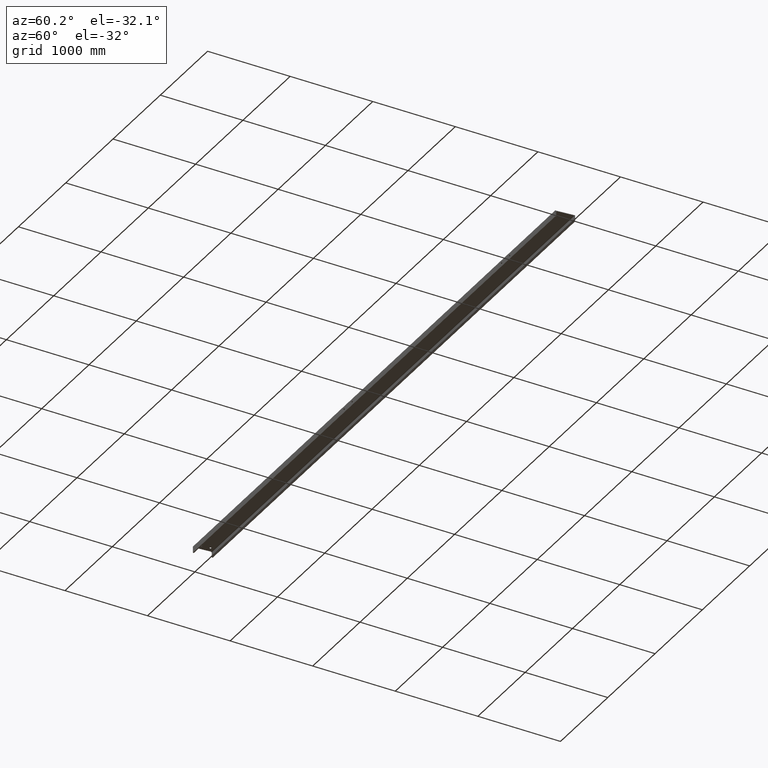
[diagram: clean part render]
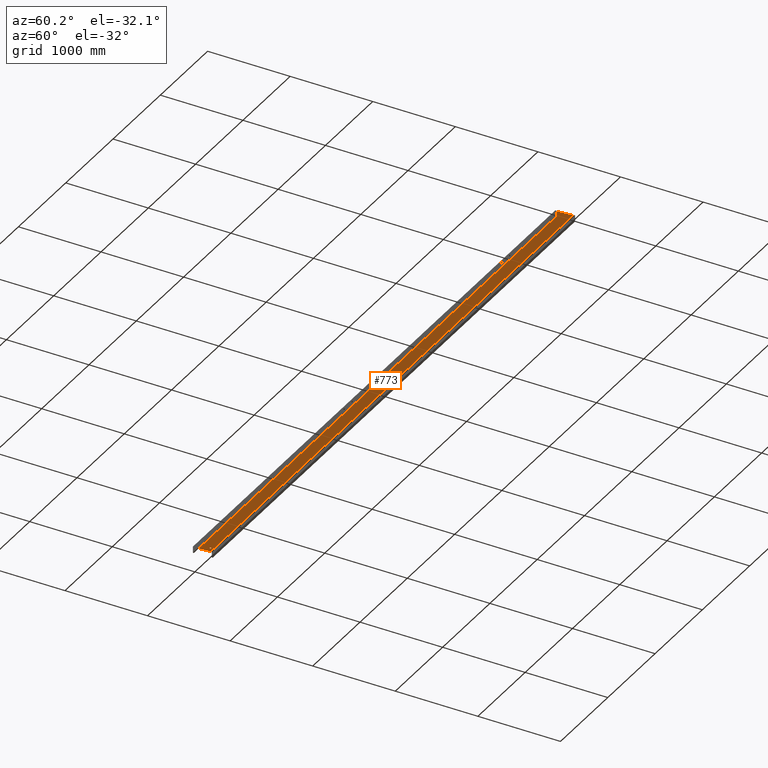
[diagram: same view with one face highlighted and labeled with its STEP entity id]
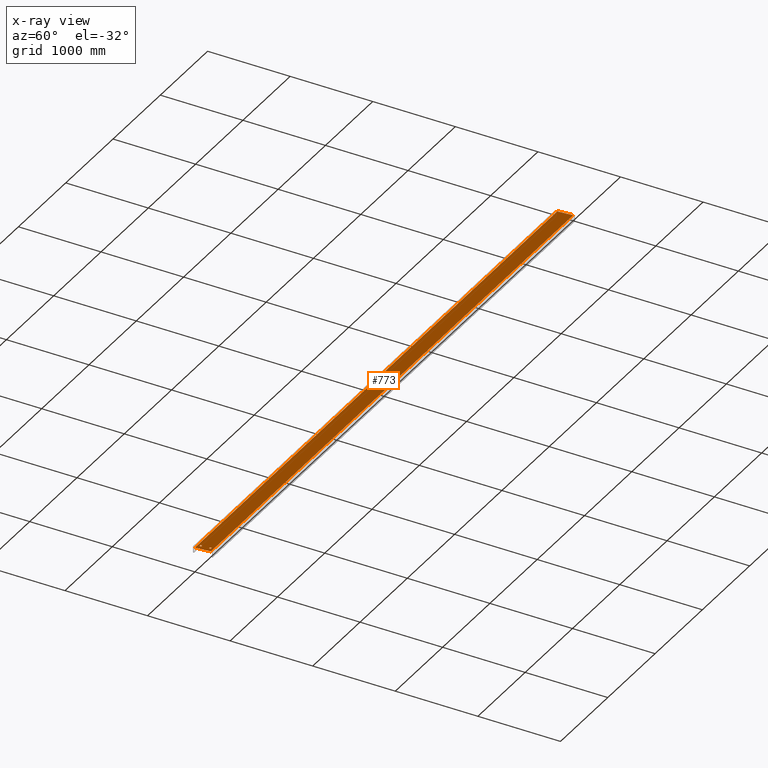
[diagram: x-ray of the same camera — body ghosted, the highlighted face saturated]
A machine part, auxiliary view. The second image highlights one B-rep face of the part: STEP entity #773.
The next image is the same camera in x-ray: the body ghosted, the highlighted face saturated — about 0% of this face is hidden behind the body in this view.
In plain terms, the highlighted planar face has unit normal (0, -0, -1).
Its self-contained STEP definition (entity closure, byte-faithful):
#15 = EDGE_LOOP ( 'NONE', ( #634, #563, #869, #238 ) ) ;
#26 = CARTESIAN_POINT ( 'NONE',  ( -3753.916047590798371, 54.79070839504525026, 7.199999999999372235 ) ) ;
#27 = VECTOR ( 'NONE', #241, 1000.000000000000000 ) ;
#33 = EDGE_CURVE ( 'NONE', #559, #229, #549, .T. ) ;
#38 = CARTESIAN_POINT ( 'NONE',  ( -3822.977335313661570, 90.99999999999917577, 7.199999999998990319 ) ) ;
#42 = PLANE ( 'NONE',  #468 ) ;
#43 = DIRECTION ( 'NONE',  ( 3.226030545363018082E-30, -1.053701539940856832E-14, -1.000000000000000000 ) ) ;
#46 = AXIS2_PLACEMENT_3D ( 'NONE', #132, #410, #683 ) ;
#48 = DIRECTION ( 'NONE',  ( 3.226030545363018082E-30, -1.053701539940856832E-14, -1.000000000000000000 ) ) ;
#56 = LINE ( 'NONE', #657, #27 ) ;
#64 = ORIENTED_EDGE ( 'NONE', *, *, #733, .F. ) ;
#71 = VECTOR ( 'NONE', #782, 1000.000000000000227 ) ;
#76 = EDGE_LOOP ( 'NONE', ( #264, #377 ) ) ;
#111 = CARTESIAN_POINT ( 'NONE',  ( -3838.916221867997137, -91.18230696385437284, 7.200000000000909672 ) ) ;
#132 = CARTESIAN_POINT ( 'NONE',  ( -3775.503179293039466, -54.79070839504681345, 7.200000000000525979 ) ) ;
#171 = LINE ( 'NONE', #259, #71 ) ;
#189 = EDGE_CURVE ( 'NONE', #559, #366, #260, .T. ) ;
#209 = ORIENTED_EDGE ( 'NONE', *, *, #458, .F. ) ;
#213 = EDGE_CURVE ( 'NONE', #366, #600, #56, .T. ) ;
#219 = DIRECTION ( 'NONE',  ( 0.000000000000000000, 1.000000000000000000, -1.055290114552557281E-14 ) ) ;
#228 = AXIS2_PLACEMENT_3D ( 'NONE', #283, #354, #219 ) ;
#229 = VERTEX_POINT ( 'NONE', #456 ) ;
#238 = ORIENTED_EDGE ( 'NONE', *, *, #33, .T. ) ;
#241 = DIRECTION ( 'NONE',  ( 1.000000000000000000, 3.061616997868382648E-16, -0.000000000000000000 ) ) ;
#259 = CARTESIAN_POINT ( 'NONE',  ( 3764.760817020207924, -756.4178489788904471, 7.200000000007920065 ) ) ;
#260 = LINE ( 'NONE', #111, #679 ) ;
#264 = ORIENTED_EDGE ( 'NONE', *, *, #663, .F. ) ;
#273 = CARTESIAN_POINT ( 'NONE',  ( -3763.503179293039466, -54.79070839504681345, 7.200000000000525979 ) ) ;
#280 = VERTEX_POINT ( 'NONE', #273 ) ;
#283 = CARTESIAN_POINT ( 'NONE',  ( -3765.916047590798371, 54.79070839504525026, 7.199999999999372235 ) ) ;
#284 = CIRCLE ( 'NONE', #786, 12.00000000000001066 ) ;
#287 = DIRECTION ( 'NONE',  ( 3.226030545363018082E-30, -1.053701539940856832E-14, -1.000000000000000000 ) ) ;
#313 = DIRECTION ( 'NONE',  ( -0.08715574274765085228, -0.9961946980917461003, 1.049691887460189778E-14 ) ) ;
#324 = FACE_BOUND ( 'NONE', #76, .T. ) ;
#354 = DIRECTION ( 'NONE',  ( 3.226030545363018082E-30, -1.053701539940856832E-14, -1.000000000000000000 ) ) ;
#366 = VERTEX_POINT ( 'NONE', #816 ) ;
#371 = EDGE_CURVE ( 'NONE', #806, #280, #422, .T. ) ;
#377 = ORIENTED_EDGE ( 'NONE', *, *, #371, .F. ) ;
#407 = EDGE_LOOP ( 'NONE', ( #209, #64 ) ) ;
#410 = DIRECTION ( 'NONE',  ( 3.226030545363018082E-30, -1.053701539940856832E-14, -1.000000000000000000 ) ) ;
#411 = AXIS2_PLACEMENT_3D ( 'NONE', #767, #287, #545 ) ;
#422 = CIRCLE ( 'NONE', #46, 12.00000000000001066 ) ;
#429 = DIRECTION ( 'NONE',  ( 1.000000000000000000, 3.061616997868382648E-16, -0.000000000000000000 ) ) ;
#433 = FACE_BOUND ( 'NONE', #407, .T. ) ;
#456 = CARTESIAN_POINT ( 'NONE',  ( 3838.900272075378780, 91.00000000000152056, 7.199999999998990319 ) ) ;
#458 = EDGE_CURVE ( 'NONE', #467, #546, #769, .T. ) ;
#467 = VERTEX_POINT ( 'NONE', #26 ) ;
#468 = AXIS2_PLACEMENT_3D ( 'NONE', #724, #48, #582 ) ;
#510 = CARTESIAN_POINT ( 'NONE',  ( -3777.916047590798371, 54.79070839504525026, 7.199999999999372235 ) ) ;
#545 = DIRECTION ( 'NONE',  ( 0.000000000000000000, 1.000000000000000000, -1.055290114552557281E-14 ) ) ;
#546 = VERTEX_POINT ( 'NONE', #510 ) ;
#549 = LINE ( 'NONE', #835, #555 ) ;
#555 = VECTOR ( 'NONE', #429, 1000.000000000000000 ) ;
#559 = VERTEX_POINT ( 'NONE', #38 ) ;
#563 = ORIENTED_EDGE ( 'NONE', *, *, #213, .F. ) ;
#564 = FACE_OUTER_BOUND ( 'NONE', #15, .T. ) ;
#582 = DIRECTION ( 'NONE',  ( 0.000000000000000000, 1.000000000000000000, -1.053701539940856832E-14 ) ) ;
#600 = VERTEX_POINT ( 'NONE', #792 ) ;
#616 = EDGE_CURVE ( 'NONE', #600, #229, #171, .T. ) ;
#634 = ORIENTED_EDGE ( 'NONE', *, *, #616, .F. ) ;
#656 = CARTESIAN_POINT ( 'NONE',  ( -3775.503179293039466, -54.79070839504681345, 7.200000000000525979 ) ) ;
#657 = CARTESIAN_POINT ( 'NONE',  ( -3841.000000000000000, -91.00000000000089528, 7.200000000000907896 ) ) ;
#663 = EDGE_CURVE ( 'NONE', #280, #806, #284, .T. ) ;
#679 = VECTOR ( 'NONE', #313, 1000.000000000000114 ) ;
#683 = DIRECTION ( 'NONE',  ( 0.000000000000000000, 1.000000000000000000, -1.055290114552556650E-14 ) ) ;
#724 = CARTESIAN_POINT ( 'NONE',  ( -3841.000000000000000, -91.00000000000089528, 7.200000000000907896 ) ) ;
#733 = EDGE_CURVE ( 'NONE', #546, #467, #857, .T. ) ;
#767 = CARTESIAN_POINT ( 'NONE',  ( -3765.916047590798371, 54.79070839504525026, 7.199999999999372235 ) ) ;
#769 = CIRCLE ( 'NONE', #411, 12.00000000000000355 ) ;
#773 = ADVANCED_FACE ( 'NONE', ( #433, #324, #564 ), #42, .T. ) ;
#779 = CARTESIAN_POINT ( 'NONE',  ( -3787.503179293039466, -54.79070839504681345, 7.200000000000525979 ) ) ;
#782 = DIRECTION ( 'NONE',  ( 0.08715574274765189311, 0.9961946980917459893, -1.049691887460189621E-14 ) ) ;
#786 = AXIS2_PLACEMENT_3D ( 'NONE', #656, #43, #858 ) ;
#792 = CARTESIAN_POINT ( 'NONE',  ( 3822.977335313661570, -91.00000000000085265, 7.200000000000907896 ) ) ;
#806 = VERTEX_POINT ( 'NONE', #779 ) ;
#816 = CARTESIAN_POINT ( 'NONE',  ( -3838.900272075377870, -91.00000000000089528, 7.200000000000907896 ) ) ;
#835 = CARTESIAN_POINT ( 'NONE',  ( -3841.000000000000000, 90.99999999999917577, 7.199999999998990319 ) ) ;
#857 = CIRCLE ( 'NONE', #228, 12.00000000000000355 ) ;
#858 = DIRECTION ( 'NONE',  ( 0.000000000000000000, 1.000000000000000000, -1.055290114552556650E-14 ) ) ;
#869 = ORIENTED_EDGE ( 'NONE', *, *, #189, .F. ) ;